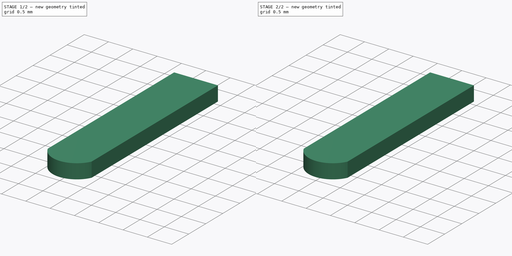
[diagram: build sequence overview — one tinted view per stage of 2, left to right]
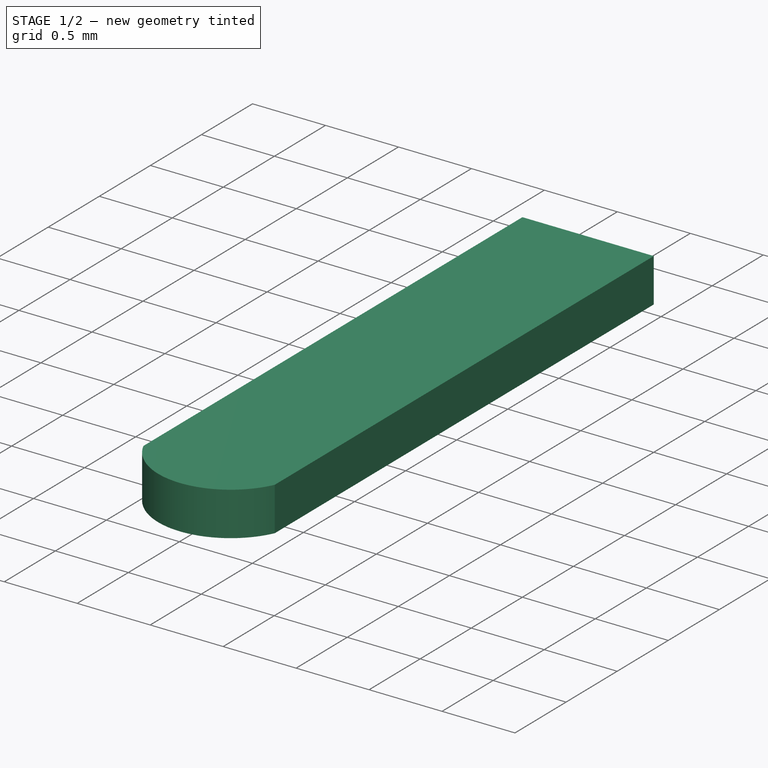
[diagram: stage 1 of 2 — iso view after this stage's code; geometry added in this stage tinted green]
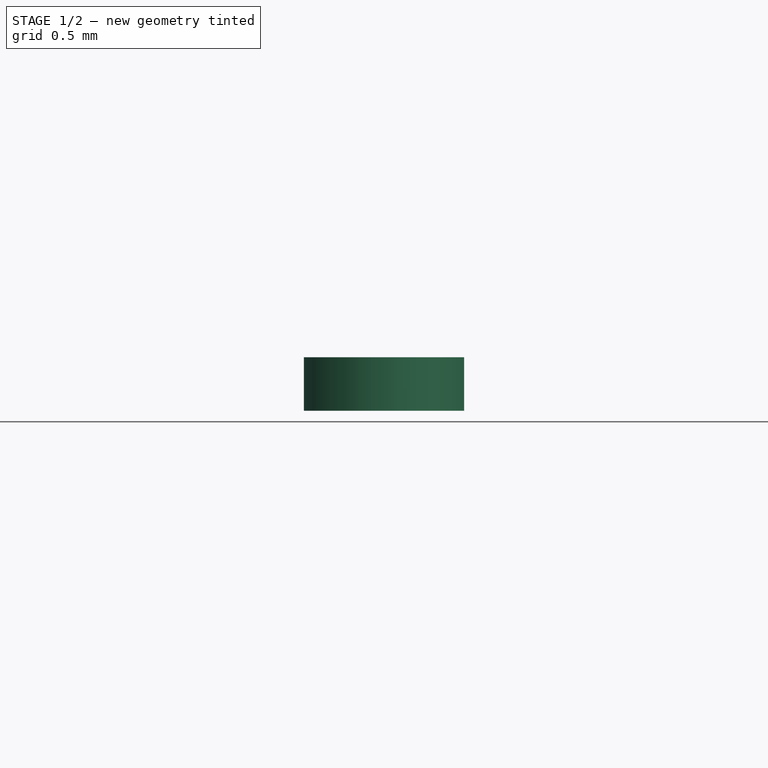
[diagram: stage 1 of 2 — front view after this stage's code; geometry added in this stage tinted green]
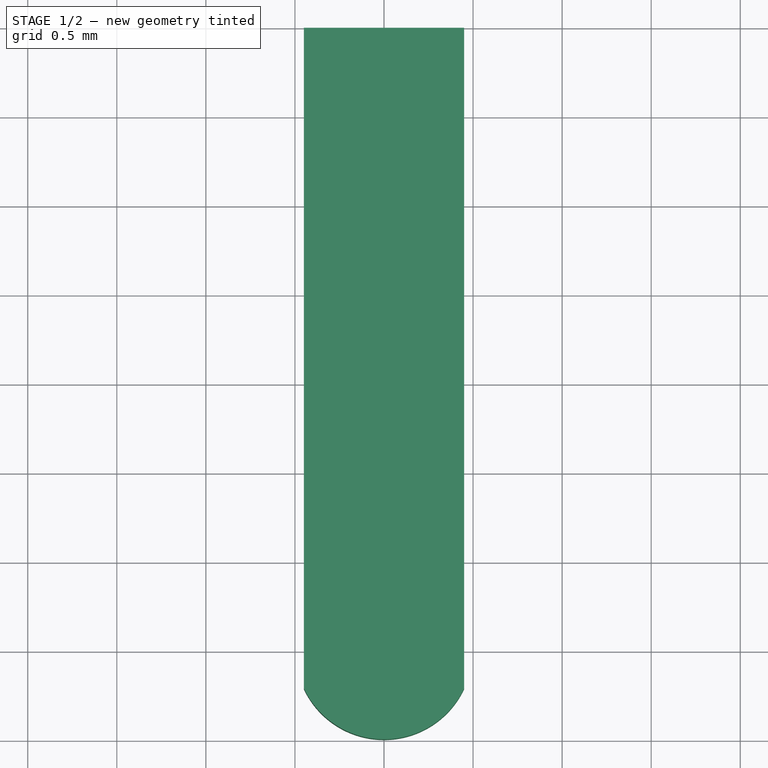
[diagram: stage 1 of 2 — top view after this stage's code; geometry added in this stage tinted green]
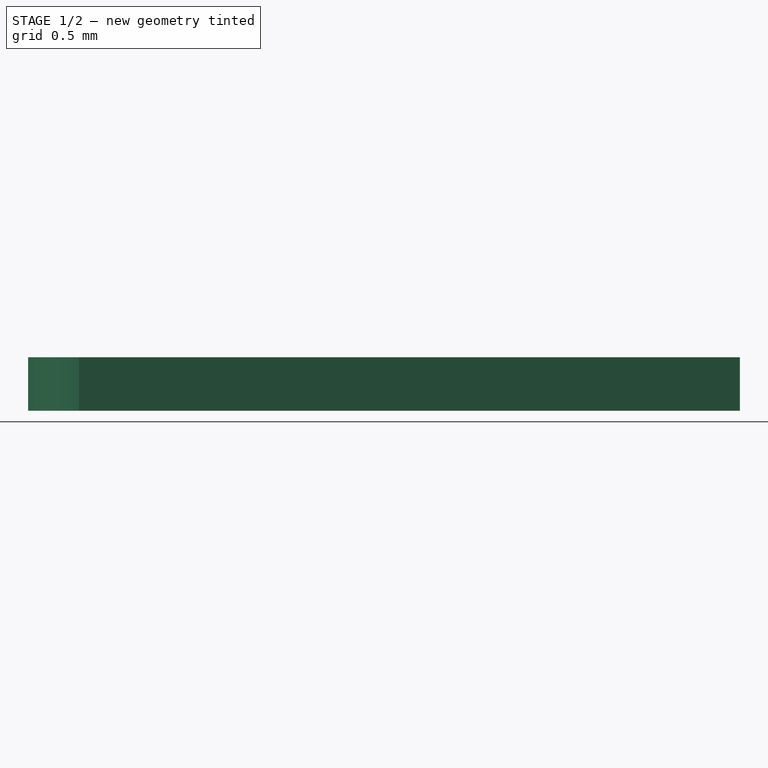
[diagram: stage 1 of 2 — right view after this stage's code; geometry added in this stage tinted green]
FCSTD DOCUMENT  (FreeCAD 0.19R16699 (Git))
Label: RD901F_Terminal_Type_20_3x
License: All rights reserved
LicenseURL: http://en.wikipedia.org/wiki/All_rights_reserved
objects: Sketcher::SketchObject×3, PartDesign::Pad×3, PartDesign::Body×3, App::Part×1
note: 12 computed .brp shape members not serialized (recipe doc carries the construction recipe); baked Part::Feature solids carry a one-line shape summary decoded from their .brp

FEATURE [PartDesign::Body] Body  label="RD901F_Terminal_Type_20_2"
  Group = -> [Sketch,Pad]
  Origin = -> Origin
  Tip = -> Pad
FEATURE [Sketcher::SketchObject] Sketch001
  MapMode = 5
  Support = -> [XY_Plane001]
  sketch-geometry (7):
    g0: ArcOfCircle CenterX=0 CenterY=-3.49746 CenterZ=0 NormalX=0 NormalY=0 NormalZ=1 AngleXU=0 Radius=0.497458 StartAngle=3.58195 EndAngle=5.84283
    g1: LineSegment StartX=-0.45 StartY=-3.70951 StartZ=0 EndX=-0.45 EndY=0 EndZ=0
    g2: LineSegment StartX=0.45 StartY=-3.70951 StartZ=0 EndX=0.45 EndY=0 EndZ=0
    g3: LineSegment StartX=-0.45 StartY=0 StartZ=0 EndX=0.45 EndY=0 EndZ=0
    g4: LineSegment [constr] StartX=0.45 StartY=-3.70951 StartZ=0 EndX=-0.45 EndY=-3.70951 EndZ=0
    g5: GeomPoint X=0 Y=-3 Z=0
    g6: LineSegment [constr] StartX=0 StartY=-3 StartZ=0 EndX=0 EndY=-3.49746 EndZ=0
  constraints (18):
    c: PointOnObject(g0,g-2)
    c: Coincident(g1,g0)
    c: PointOnObject(g1,g-1)
    c: Vertical(g1)
    c: Coincident(g2,g0)
    c: PointOnObject(g2,g-1)
    c: Vertical(g2)
    c: Coincident(g3,g1)
    c: Coincident(g3,g2)
    c: Coincident(g4,g0)
    c: Coincident(g4,g0)
    c: Horizontal(g4)
    c: DistanceX(g3,g3) = 0.9
    c: PointOnObject(g5,g0)
    c: Coincident(g6,g5)
    c: Coincident(g6,g0)
    c: PointOnObject(g5,g-2)
    c: DistanceY(g5,g-1) = 3
FEATURE [PartDesign::Pad] Pad001
  Length = 0.3
  Length2 = 100
  Midplane = true
  Profile = -> Sketch001
  Type = 0
FEATURE [PartDesign::Body] Body001  label="RD901F_Terminal_Type_20_1"
  Group = -> [Sketch001,Pad001]
  Origin = -> Origin001
  Placement = pos=(-2.5,0,0) rot=(0,0,1;0rad)
  Tip = -> Pad001
FEATURE [Sketcher::SketchObject] Sketch002
  MapMode = 5
  Support = -> [XY_Plane002]
  sketch-geometry (7):
    g0: ArcOfCircle CenterX=0 CenterY=-3.49746 CenterZ=0 NormalX=0 NormalY=0 NormalZ=1 AngleXU=0 Radius=0.497458 StartAngle=3.58195 EndAngle=5.84283
    g1: LineSegment StartX=-0.45 StartY=-3.70951 StartZ=0 EndX=-0.45 EndY=0 EndZ=0
    g2: LineSegment StartX=0.45 StartY=-3.70951 StartZ=0 EndX=0.45 EndY=0 EndZ=0
    g3: LineSegment StartX=-0.45 StartY=0 StartZ=0 EndX=0.45 EndY=0 EndZ=0
    g4: LineSegment [constr] StartX=0.45 StartY=-3.70951 StartZ=0 EndX=-0.45 EndY=-3.70951 EndZ=0
    g5: GeomPoint X=0 Y=-3 Z=0
    g6: LineSegment [constr] StartX=0 StartY=-3 StartZ=0 EndX=0 EndY=-3.49746 EndZ=0
  constraints (18):
    c: PointOnObject(g0,g-2)
    c: Coincident(g1,g0)
    c: PointOnObject(g1,g-1)
    c: Vertical(g1)
    c: Coincident(g2,g0)
    c: PointOnObject(g2,g-1)
    c: Vertical(g2)
    c: Coincident(g3,g1)
    c: Coincident(g3,g2)
    c: Coincident(g4,g0)
    c: Coincident(g4,g0)
    c: Horizontal(g4)
    c: DistanceX(g3,g3) = 0.9
    c: PointOnObject(g5,g0)
    c: Coincident(g6,g5)
    c: Coincident(g6,g0)
    c: PointOnObject(g5,g-2)
    c: DistanceY(g5,g-1) = 3
FEATURE [PartDesign::Pad] Pad002
  Length = 0.3
  Length2 = 100
  Midplane = true
  Profile = -> Sketch002
  Type = 0
FEATURE [PartDesign::Body] Body002  label="RD901F_Terminal_Type_20_3"
  Group = -> [Sketch002,Pad002]
  Origin = -> Origin002
  Placement = pos=(2.5,0,0) rot=(0,0,1;0rad)
  Tip = -> Pad002
FEATURE [App::Part] Part  label="RD901F_Terminal_Type_20_3x"
  Group = -> [Body001,Body,Body002]
  Origin = -> Origin003
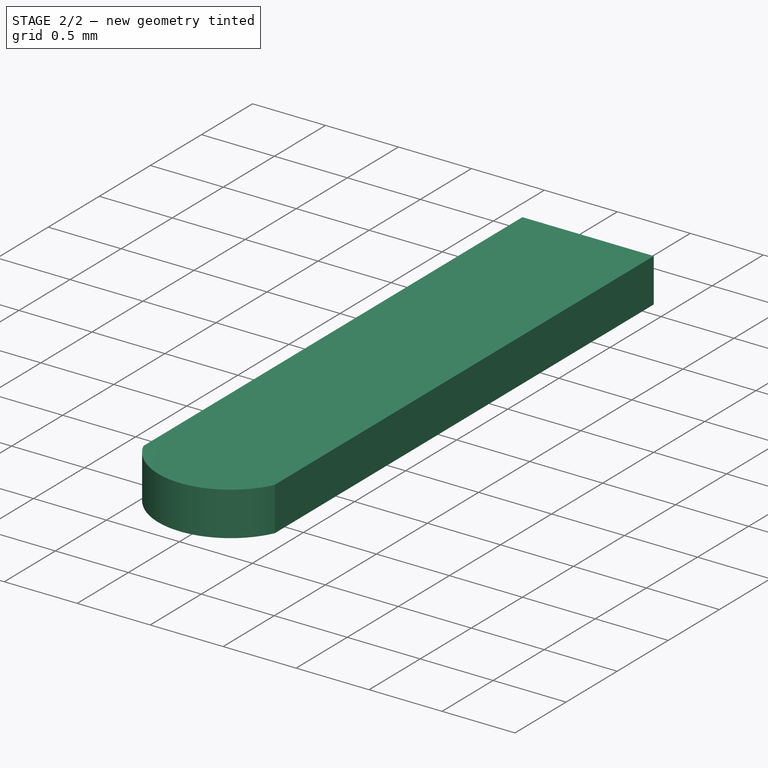
[diagram: stage 2 of 2 — iso view after this stage's code; geometry added in this stage tinted green]
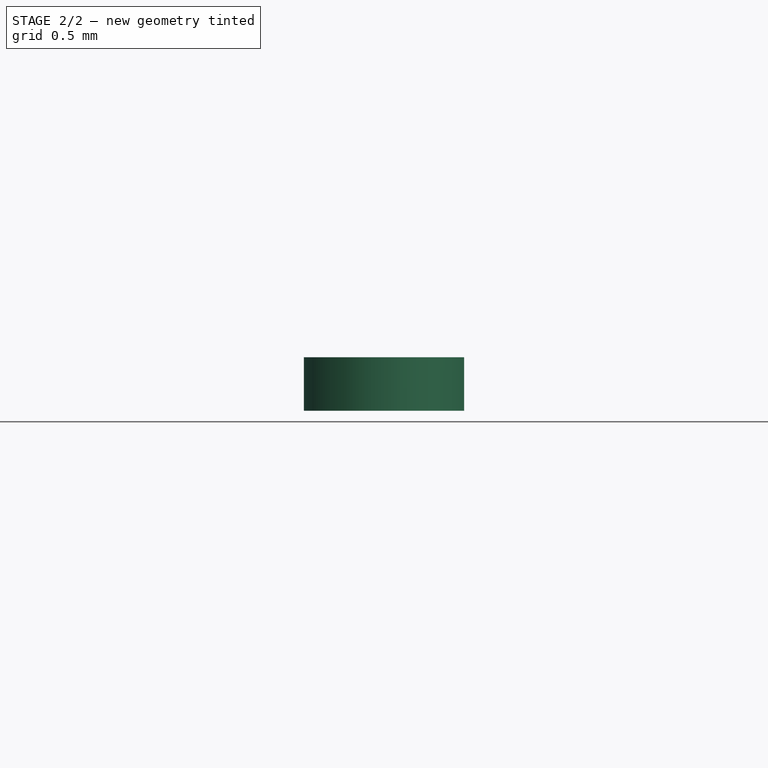
[diagram: stage 2 of 2 — front view after this stage's code; geometry added in this stage tinted green]
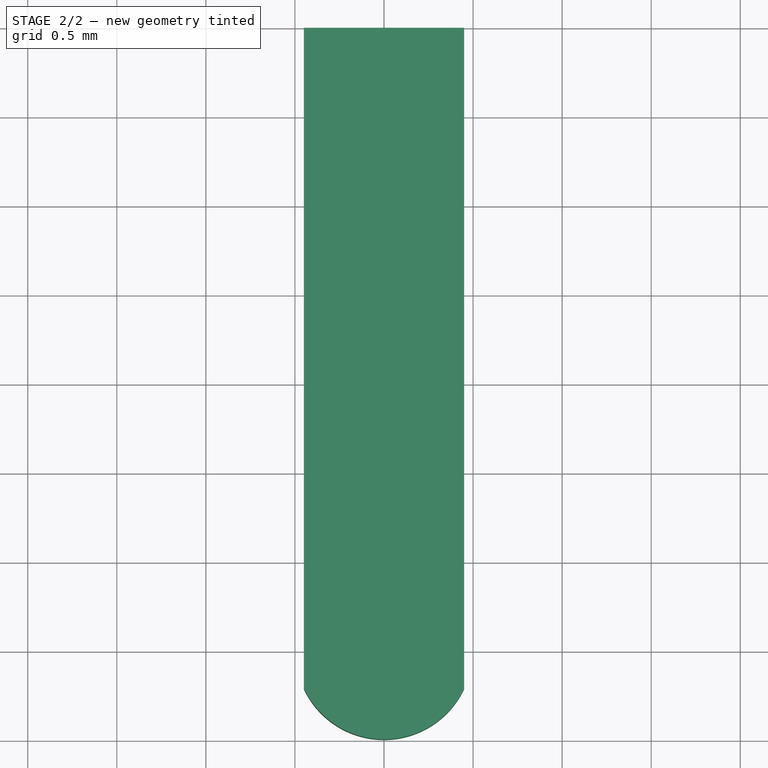
[diagram: stage 2 of 2 — top view after this stage's code; geometry added in this stage tinted green]
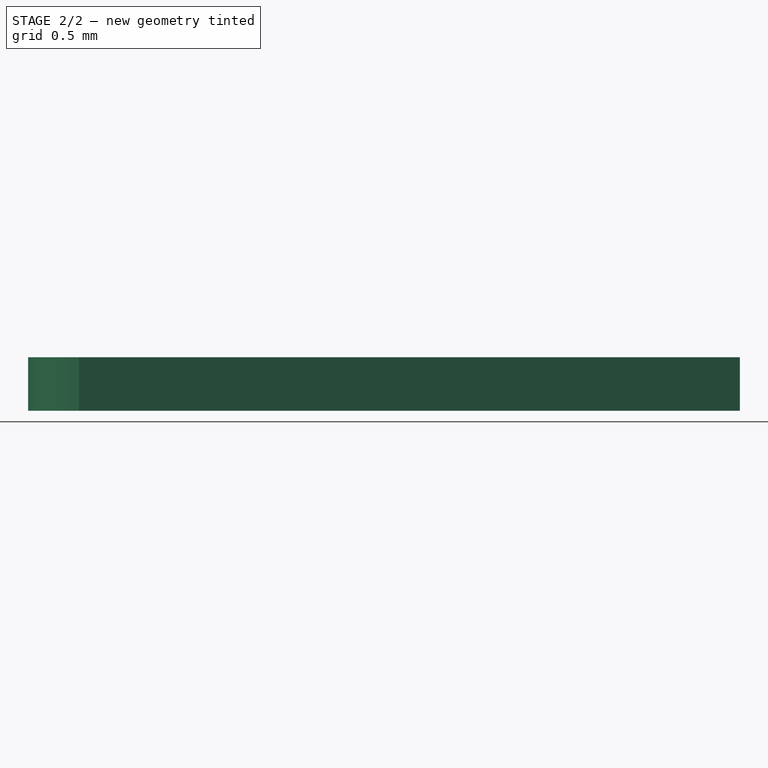
[diagram: stage 2 of 2 — right view after this stage's code; geometry added in this stage tinted green]
FEATURE [Sketcher::SketchObject] Sketch
  MapMode = 5
  Support = -> [XY_Plane]
  sketch-geometry (7):
    g0: ArcOfCircle CenterX=0 CenterY=-3.49746 CenterZ=0 NormalX=0 NormalY=0 NormalZ=1 AngleXU=0 Radius=0.497458 StartAngle=3.58195 EndAngle=5.84283
    g1: LineSegment StartX=-0.45 StartY=-3.70951 StartZ=0 EndX=-0.45 EndY=0 EndZ=0
    g2: LineSegment StartX=0.45 StartY=-3.70951 StartZ=0 EndX=0.45 EndY=0 EndZ=0
    g3: LineSegment StartX=-0.45 StartY=0 StartZ=0 EndX=0.45 EndY=0 EndZ=0
    g4: LineSegment [constr] StartX=0.45 StartY=-3.70951 StartZ=0 EndX=-0.45 EndY=-3.70951 EndZ=0
    g5: GeomPoint X=0 Y=-3 Z=0
    g6: LineSegment [constr] StartX=0 StartY=-3 StartZ=0 EndX=0 EndY=-3.49746 EndZ=0
  constraints (18):
    c: PointOnObject(g0,g-2)
    c: Coincident(g1,g0)
    c: PointOnObject(g1,g-1)
    c: Vertical(g1)
    c: Coincident(g2,g0)
    c: PointOnObject(g2,g-1)
    c: Vertical(g2)
    c: Coincident(g3,g1)
    c: Coincident(g3,g2)
    c: Coincident(g4,g0)
    c: Coincident(g4,g0)
    c: Horizontal(g4)
    c: DistanceX(g3,g3) = 0.9
    c: PointOnObject(g5,g0)
    c: Coincident(g6,g5)
    c: Coincident(g6,g0)
    c: PointOnObject(g5,g-2)
    c: DistanceY(g5,g-1) = 3
FEATURE [PartDesign::Pad] Pad
  Length = 0.3
  Length2 = 100
  Midplane = true
  Profile = -> Sketch
  Type = 0
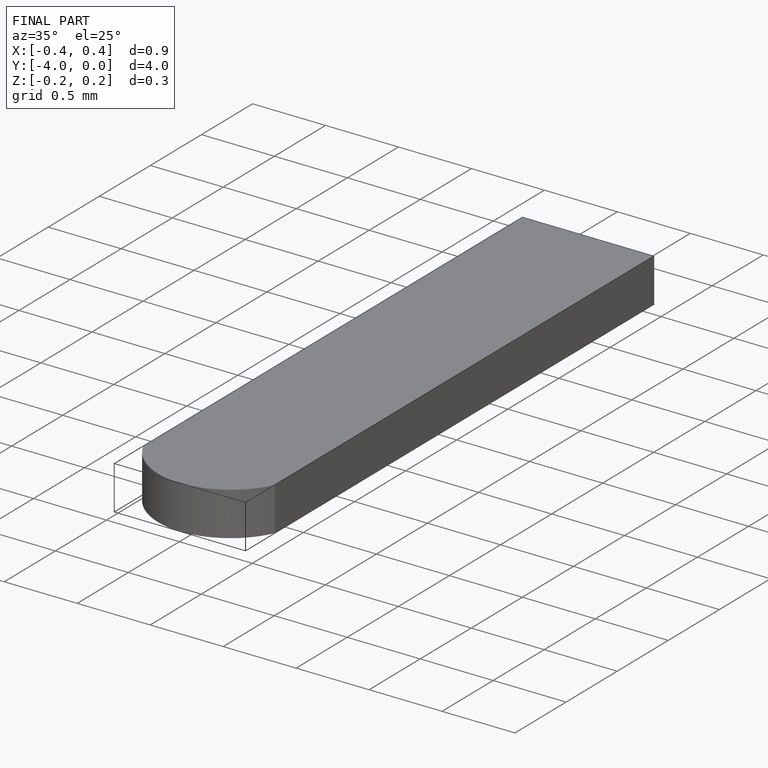
[diagram: finished part — iso view with bounding-box wireframe]
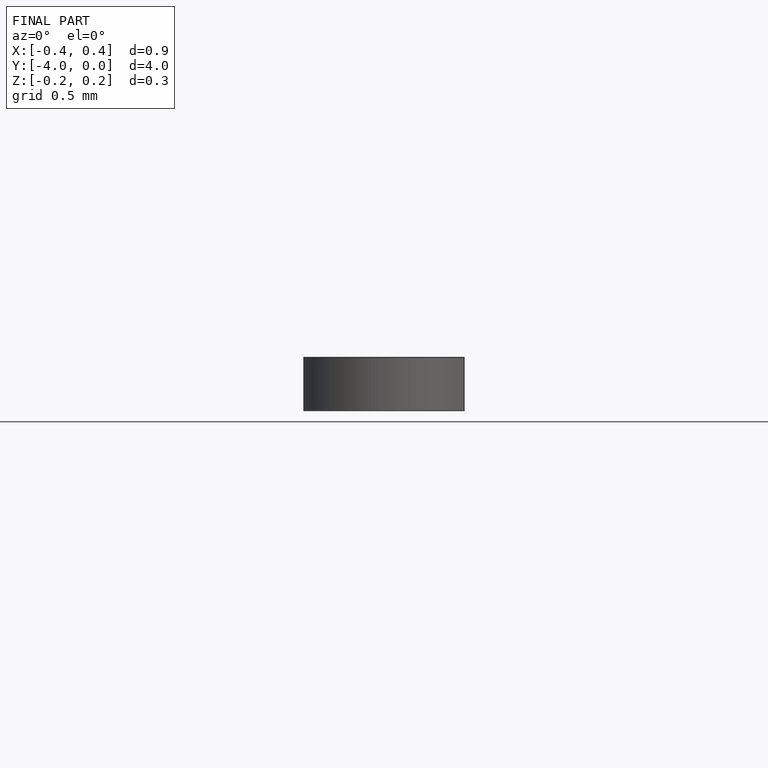
[diagram: finished part — front view with bounding-box wireframe]
